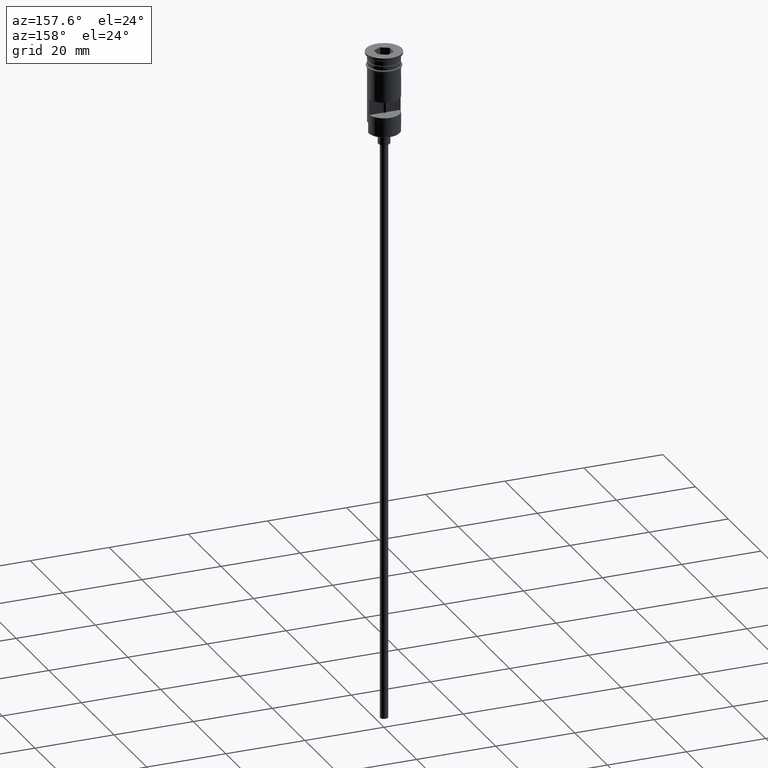
[diagram: clean part render]
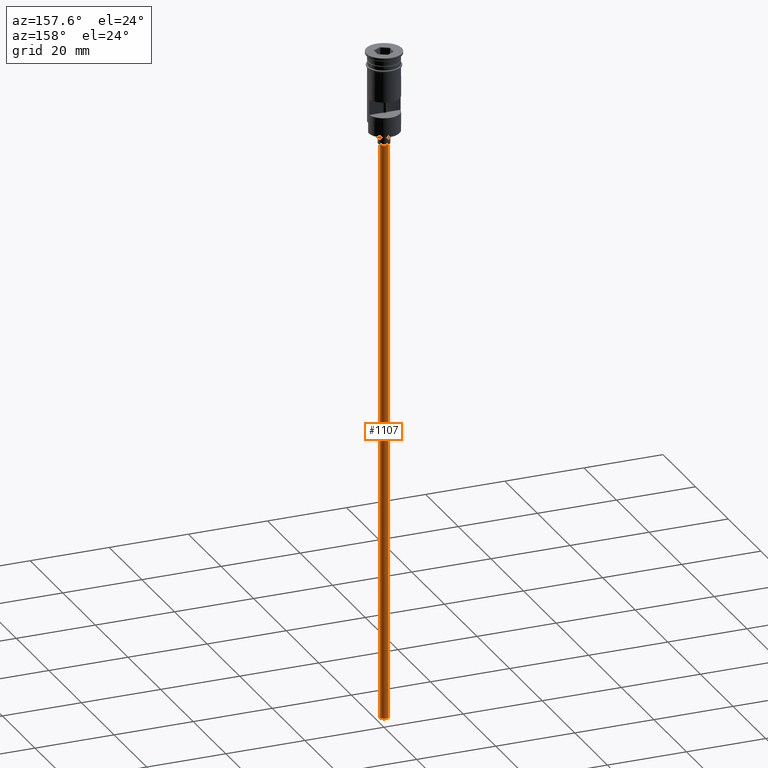
[diagram: same view with one face highlighted and labeled with its STEP entity id]
A machine part, auxiliary view. The second image highlights one B-rep face of the part: STEP entity #1107.
In plain terms, the highlighted cylindrical surface (edge-blend (fillet) strip) has radius 1 mm, axis along (-0, -0, 1).
Its self-contained STEP definition (entity closure, byte-faithful):
#34 = LINE ( 'NONE', #151, #1265 ) ;
#50 = ORIENTED_EDGE ( 'NONE', *, *, #1243, .T. ) ;
#57 = AXIS2_PLACEMENT_3D ( 'NONE', #422, #538, #910 ) ;
#101 = EDGE_CURVE ( 'NONE', #602, #1399, #34, .T. ) ;
#151 = CARTESIAN_POINT ( 'NONE',  ( 0.9999999999999997780, 0.000000000000000000, -170.4999999999999716 ) ) ;
#167 = FACE_OUTER_BOUND ( 'NONE', #231, .T. ) ;
#171 = VERTEX_POINT ( 'NONE', #197 ) ;
#197 = CARTESIAN_POINT ( 'NONE',  ( -0.9999999999999997780, 1.224646799147352961E-16, -170.4999999999999716 ) ) ;
#231 = EDGE_LOOP ( 'NONE', ( #1186, #50, #319, #1526 ) ) ;
#273 = EDGE_CURVE ( 'NONE', #171, #602, #906, .T. ) ;
#319 = ORIENTED_EDGE ( 'NONE', *, *, #987, .T. ) ;
#357 = VECTOR ( 'NONE', #609, 1000.000000000000000 ) ;
#372 = CARTESIAN_POINT ( 'NONE',  ( -0.9999999999999997780, 1.224646799147352961E-16, -23.49999999999999645 ) ) ;
#373 = CARTESIAN_POINT ( 'NONE',  ( 0.9999999999999997780, 0.000000000000000000, -170.4999999999999716 ) ) ;
#419 = DIRECTION ( 'NONE',  ( 1.000000000000000000, 0.000000000000000000, 0.000000000000000000 ) ) ;
#422 = CARTESIAN_POINT ( 'NONE',  ( 0.000000000000000000, 0.000000000000000000, -170.4999999999999716 ) ) ;
#428 = DIRECTION ( 'NONE',  ( -0.000000000000000000, -0.000000000000000000, 1.000000000000000000 ) ) ;
#502 = CARTESIAN_POINT ( 'NONE',  ( 0.000000000000000000, 0.000000000000000000, -23.49999999999999645 ) ) ;
#533 = DIRECTION ( 'NONE',  ( -0.000000000000000000, -0.000000000000000000, 1.000000000000000000 ) ) ;
#538 = DIRECTION ( 'NONE',  ( 0.000000000000000000, 0.000000000000000000, -1.000000000000000000 ) ) ;
#602 = VERTEX_POINT ( 'NONE', #373 ) ;
#609 = DIRECTION ( 'NONE',  ( -0.000000000000000000, -0.000000000000000000, 1.000000000000000000 ) ) ;
#613 = CIRCLE ( 'NONE', #1279, 0.9999999999999997780 ) ;
#737 = LINE ( 'NONE', #1077, #357 ) ;
#762 = CARTESIAN_POINT ( 'NONE',  ( 0.000000000000000000, 0.000000000000000000, -170.4999999999999716 ) ) ;
#878 = DIRECTION ( 'NONE',  ( -1.000000000000000000, 0.000000000000000000, 0.000000000000000000 ) ) ;
#886 = DIRECTION ( 'NONE',  ( 0.000000000000000000, 0.000000000000000000, -1.000000000000000000 ) ) ;
#906 = CIRCLE ( 'NONE', #57, 0.9999999999999997780 ) ;
#910 = DIRECTION ( 'NONE',  ( -1.000000000000000000, 0.000000000000000000, 0.000000000000000000 ) ) ;
#987 = EDGE_CURVE ( 'NONE', #1062, #1399, #613, .T. ) ;
#1032 = CYLINDRICAL_SURFACE ( 'NONE', #1384, 0.9999999999999997780 ) ;
#1062 = VERTEX_POINT ( 'NONE', #372 ) ;
#1077 = CARTESIAN_POINT ( 'NONE',  ( -0.9999999999999997780, 1.224646799147352961E-16, -170.4999999999999716 ) ) ;
#1103 = CARTESIAN_POINT ( 'NONE',  ( 0.9999999999999997780, 0.000000000000000000, -23.49999999999999645 ) ) ;
#1107 = ADVANCED_FACE ( 'NONE', ( #167 ), #1032, .T. ) ;
#1186 = ORIENTED_EDGE ( 'NONE', *, *, #273, .F. ) ;
#1243 = EDGE_CURVE ( 'NONE', #171, #1062, #737, .T. ) ;
#1265 = VECTOR ( 'NONE', #533, 1000.000000000000000 ) ;
#1279 = AXIS2_PLACEMENT_3D ( 'NONE', #502, #886, #878 ) ;
#1384 = AXIS2_PLACEMENT_3D ( 'NONE', #762, #428, #419 ) ;
#1399 = VERTEX_POINT ( 'NONE', #1103 ) ;
#1526 = ORIENTED_EDGE ( 'NONE', *, *, #101, .F. ) ;